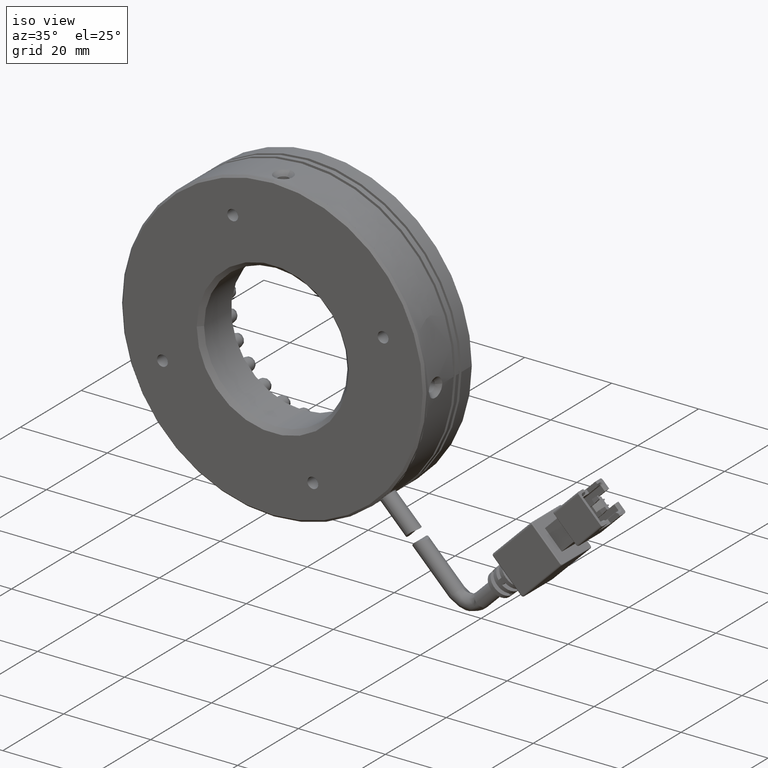
[diagram: clean part render]
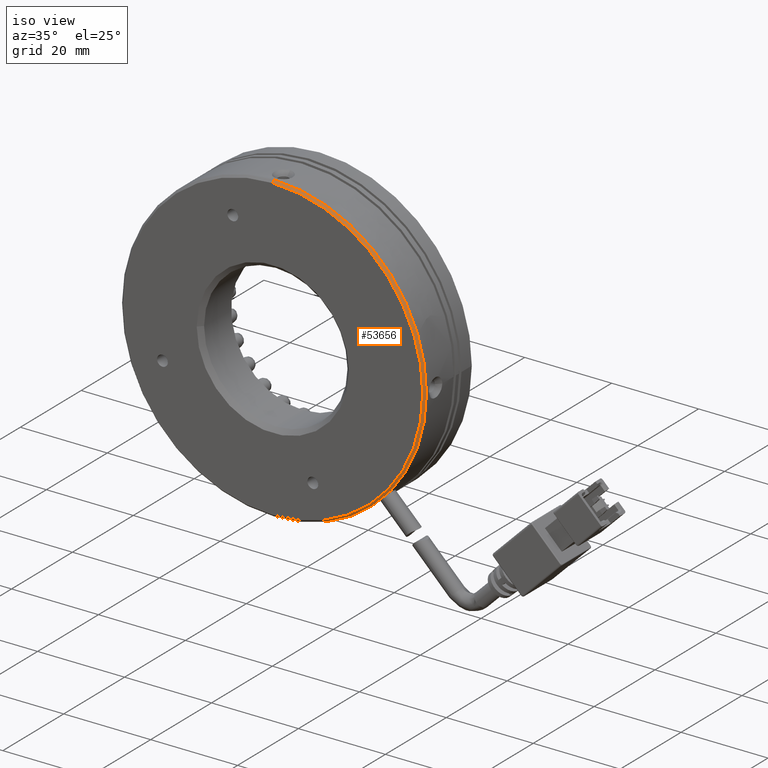
[diagram: same view with one face highlighted and labeled with its STEP entity id]
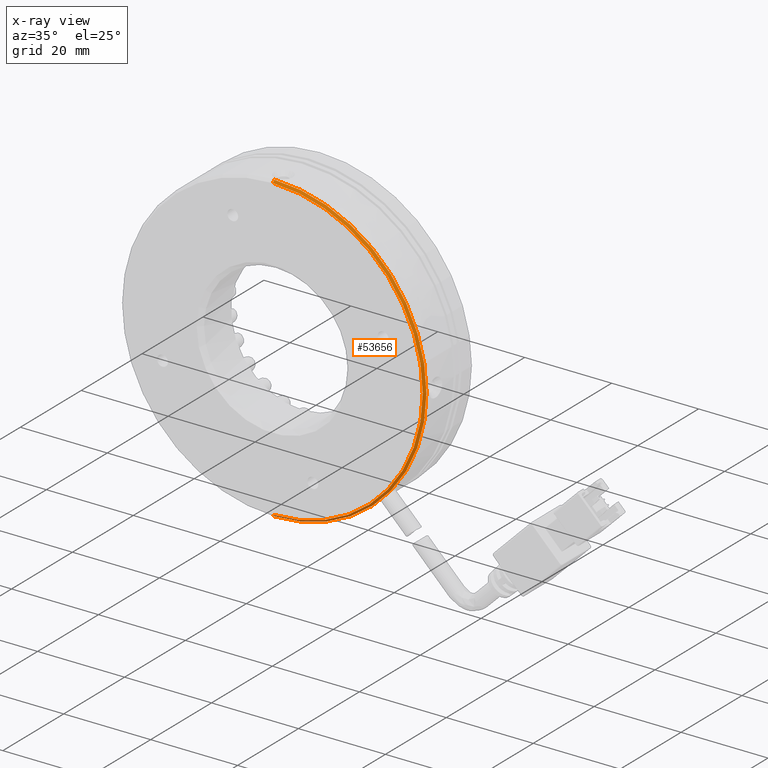
[diagram: x-ray of the same camera — body ghosted, the highlighted face saturated]
A machine part, iso view. The second image highlights one B-rep face of the part: STEP entity #53656.
The next image is the same camera in x-ray: the body ghosted, the highlighted face saturated — about 0% of this face is hidden behind the body in this view.
In plain terms, the highlighted conical surface has half-angle 45 deg.
Its self-contained STEP definition (entity closure, byte-faithful):
#206 = CONICAL_SURFACE ( 'NONE', #36183, 35.00000000000000700, 0.7853981633974552700 ) ;
#2934 = VECTOR ( 'NONE', #34833, 999.9999999999998900 ) ;
#3987 = EDGE_CURVE ( 'NONE', #46019, #66325, #57848, .T. ) ;
#4502 = VERTEX_POINT ( 'NONE', #32943 ) ;
#6050 = ORIENTED_EDGE ( 'NONE', *, *, #53364, .T. ) ;
#11856 = DIRECTION ( 'NONE',  ( 0.0000000000000000000, 1.000000000000000000, 0.0000000000000000000 ) ) ;
#15308 = DIRECTION ( 'NONE',  ( 0.0000000000000000000, 1.000000000000000000, 0.0000000000000000000 ) ) ;
#17850 = ORIENTED_EDGE ( 'NONE', *, *, #58363, .T. ) ;
#26068 = FACE_OUTER_BOUND ( 'NONE', #68624, .T. ) ;
#27148 = CARTESIAN_POINT ( 'NONE',  ( -24.92313932795383400, -3.779814118402002900, 35.00000000000000700 ) ) ;
#27891 = VERTEX_POINT ( 'NONE', #30720 ) ;
#30720 = CARTESIAN_POINT ( 'NONE',  ( -24.92313932795383000, -4.279814118402002900, -34.50000000000000000 ) ) ;
#32943 = CARTESIAN_POINT ( 'NONE',  ( -24.92313932795383400, -4.279814118402002900, 34.50000000000000000 ) ) ;
#33124 = DIRECTION ( 'NONE',  ( 0.0000000000000000000, 0.0000000000000000000, 1.000000000000000000 ) ) ;
#34833 = DIRECTION ( 'NONE',  ( 8.659560562354994500E-017, 0.7071067811865425800, -0.7071067811865525700 ) ) ;
#36183 = AXIS2_PLACEMENT_3D ( 'NONE', #51377, #11856, #84275 ) ;
#37275 = VECTOR ( 'NONE', #83306, 999.9999999999998900 ) ;
#37640 = CARTESIAN_POINT ( 'NONE',  ( -24.92313932795383400, -3.779814118402002900, 35.00000000000000700 ) ) ;
#37774 = DIRECTION ( 'NONE',  ( 0.0000000000000000000, -1.000000000000000000, 0.0000000000000000000 ) ) ;
#38853 = CARTESIAN_POINT ( 'NONE',  ( -24.92313932795383400, -3.779814118402002900, 0.0000000000000000000 ) ) ;
#44256 = ORIENTED_EDGE ( 'NONE', *, *, #46851, .F. ) ;
#46019 = VERTEX_POINT ( 'NONE', #69445 ) ;
#46851 = EDGE_CURVE ( 'NONE', #4502, #66325, #71960, .T. ) ;
#51377 = CARTESIAN_POINT ( 'NONE',  ( -24.92313932795383400, -3.779814118402002900, 0.0000000000000000000 ) ) ;
#53191 = LINE ( 'NONE', #73928, #2934 ) ;
#53364 = EDGE_CURVE ( 'NONE', #4502, #27891, #59857, .T. ) ;
#53656 = ADVANCED_FACE ( 'NONE', ( #26068 ), #206, .T. ) ;
#54537 = CARTESIAN_POINT ( 'NONE',  ( -24.92313932795383400, -4.279814118402002900, 0.0000000000000000000 ) ) ;
#57848 = CIRCLE ( 'NONE', #63649, 35.00000000000000700 ) ;
#58363 = EDGE_CURVE ( 'NONE', #27891, #46019, #53191, .T. ) ;
#59857 = CIRCLE ( 'NONE', #71677, 34.50000000000000000 ) ;
#61111 = DIRECTION ( 'NONE',  ( 0.0000000000000000000, 0.0000000000000000000, 1.000000000000000000 ) ) ;
#62746 = ORIENTED_EDGE ( 'NONE', *, *, #3987, .T. ) ;
#63649 = AXIS2_PLACEMENT_3D ( 'NONE', #38853, #37774, #33124 ) ;
#66325 = VERTEX_POINT ( 'NONE', #27148 ) ;
#68624 = EDGE_LOOP ( 'NONE', ( #6050, #17850, #62746, #44256 ) ) ;
#69445 = CARTESIAN_POINT ( 'NONE',  ( -24.92313932795383000, -3.779814118402002900, -35.00000000000000700 ) ) ;
#71677 = AXIS2_PLACEMENT_3D ( 'NONE', #54537, #15308, #61111 ) ;
#71960 = LINE ( 'NONE', #37640, #37275 ) ;
#73928 = CARTESIAN_POINT ( 'NONE',  ( -24.92313932795383000, -3.779814118402002900, -35.00000000000000700 ) ) ;
#83306 = DIRECTION ( 'NONE',  ( 0.0000000000000000000, 0.7071067811865425800, 0.7071067811865525700 ) ) ;
#84275 = DIRECTION ( 'NONE',  ( 0.0000000000000000000, 0.0000000000000000000, 1.000000000000000000 ) ) ;